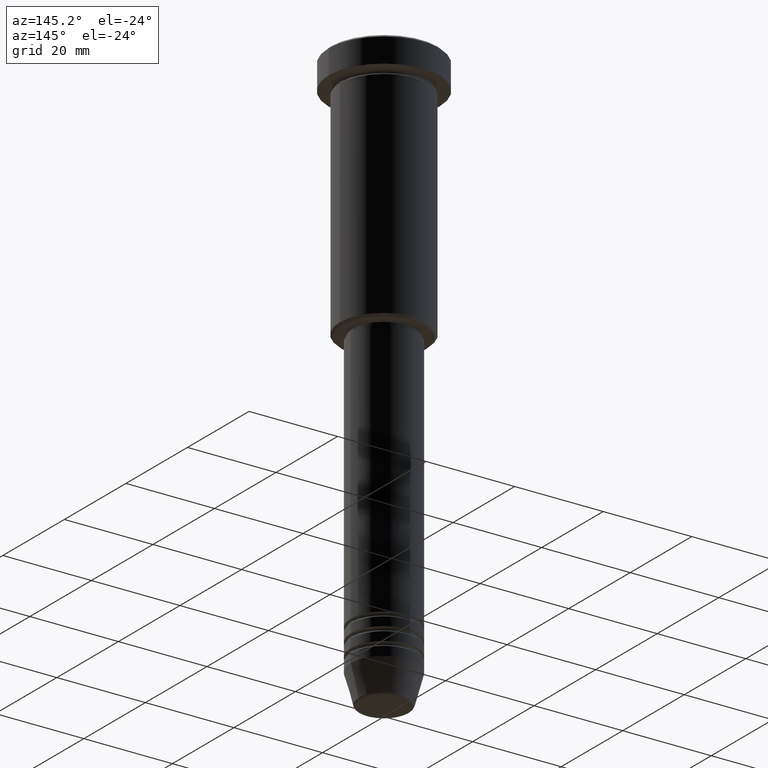
[diagram: clean part render]
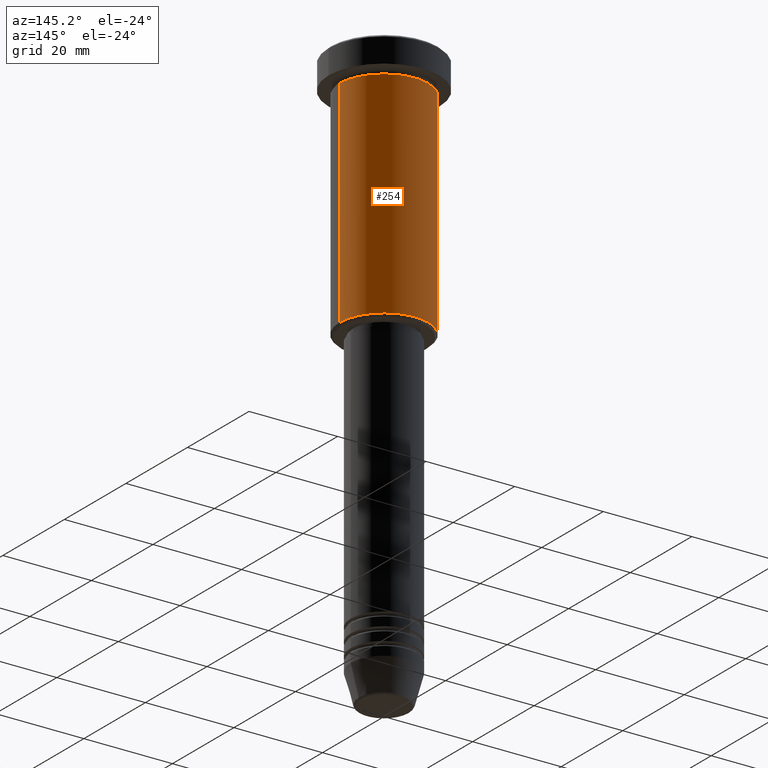
[diagram: same view with one face highlighted and labeled with its STEP entity id]
A machine part, auxiliary view. The second image highlights one B-rep face of the part: STEP entity #254.
In plain terms, the highlighted cylindrical surface (partial cylindrical patch) has radius 10 mm, axis along (-0, -0, 1).
Its self-contained STEP definition (entity closure, byte-faithful):
#21 = VERTEX_POINT ( 'NONE', #204 ) ;
#29 = DIRECTION ( 'NONE',  ( -0.000000000000000000, -0.000000000000000000, 1.000000000000000000 ) ) ;
#44 = AXIS2_PLACEMENT_3D ( 'NONE', #176, #29, #1026 ) ;
#48 = AXIS2_PLACEMENT_3D ( 'NONE', #333, #513, #686 ) ;
#135 = LINE ( 'NONE', #859, #811 ) ;
#139 = CARTESIAN_POINT ( 'NONE',  ( -10.00000000000000000, 1.224646799147353256E-15, -55.49999999999999289 ) ) ;
#147 = EDGE_LOOP ( 'NONE', ( #200, #828, #313, #580 ) ) ;
#172 = EDGE_CURVE ( 'NONE', #21, #570, #606, .T. ) ;
#176 = CARTESIAN_POINT ( 'NONE',  ( 0.000000000000000000, 0.000000000000000000, -6.999999999999996447 ) ) ;
#200 = ORIENTED_EDGE ( 'NONE', *, *, #1133, .T. ) ;
#204 = CARTESIAN_POINT ( 'NONE',  ( 10.00000000000000000, 0.000000000000000000, -55.49999999999999289 ) ) ;
#254 = ADVANCED_FACE ( 'NONE', ( #640 ), #471, .T. ) ;
#313 = ORIENTED_EDGE ( 'NONE', *, *, #338, .F. ) ;
#333 = CARTESIAN_POINT ( 'NONE',  ( 0.000000000000000000, 0.000000000000000000, -55.49999999999999289 ) ) ;
#338 = EDGE_CURVE ( 'NONE', #570, #975, #1073, .T. ) ;
#403 = CIRCLE ( 'NONE', #48, 10.00000000000000000 ) ;
#471 = CYLINDRICAL_SURFACE ( 'NONE', #556, 10.00000000000000000 ) ;
#513 = DIRECTION ( 'NONE',  ( -0.000000000000000000, -0.000000000000000000, 1.000000000000000000 ) ) ;
#556 = AXIS2_PLACEMENT_3D ( 'NONE', #568, #754, #915 ) ;
#568 = CARTESIAN_POINT ( 'NONE',  ( 0.000000000000000000, 0.000000000000000000, 0.000000000000000000 ) ) ;
#570 = VERTEX_POINT ( 'NONE', #621 ) ;
#580 = ORIENTED_EDGE ( 'NONE', *, *, #172, .F. ) ;
#606 = LINE ( 'NONE', #619, #840 ) ;
#619 = CARTESIAN_POINT ( 'NONE',  ( 10.00000000000000000, 0.000000000000000000, 0.000000000000000000 ) ) ;
#621 = CARTESIAN_POINT ( 'NONE',  ( 10.00000000000000000, 0.000000000000000000, -6.999999999999996447 ) ) ;
#640 = FACE_OUTER_BOUND ( 'NONE', #147, .T. ) ;
#686 = DIRECTION ( 'NONE',  ( -1.000000000000000000, 0.000000000000000000, 0.000000000000000000 ) ) ;
#754 = DIRECTION ( 'NONE',  ( -0.000000000000000000, -0.000000000000000000, 1.000000000000000000 ) ) ;
#811 = VECTOR ( 'NONE', #955, 1000.000000000000000 ) ;
#828 = ORIENTED_EDGE ( 'NONE', *, *, #849, .T. ) ;
#840 = VECTOR ( 'NONE', #978, 1000.000000000000000 ) ;
#849 = EDGE_CURVE ( 'NONE', #1150, #975, #135, .T. ) ;
#859 = CARTESIAN_POINT ( 'NONE',  ( -10.00000000000000000, 1.224646799147353256E-15, 0.000000000000000000 ) ) ;
#885 = CARTESIAN_POINT ( 'NONE',  ( -10.00000000000000000, 1.224646799147353256E-15, -6.999999999999996447 ) ) ;
#915 = DIRECTION ( 'NONE',  ( 1.000000000000000000, 0.000000000000000000, 0.000000000000000000 ) ) ;
#955 = DIRECTION ( 'NONE',  ( -0.000000000000000000, -0.000000000000000000, 1.000000000000000000 ) ) ;
#975 = VERTEX_POINT ( 'NONE', #885 ) ;
#978 = DIRECTION ( 'NONE',  ( -0.000000000000000000, -0.000000000000000000, 1.000000000000000000 ) ) ;
#1026 = DIRECTION ( 'NONE',  ( 1.000000000000000000, 0.000000000000000000, 0.000000000000000000 ) ) ;
#1073 = CIRCLE ( 'NONE', #44, 10.00000000000000000 ) ;
#1133 = EDGE_CURVE ( 'NONE', #21, #1150, #403, .T. ) ;
#1150 = VERTEX_POINT ( 'NONE', #139 ) ;